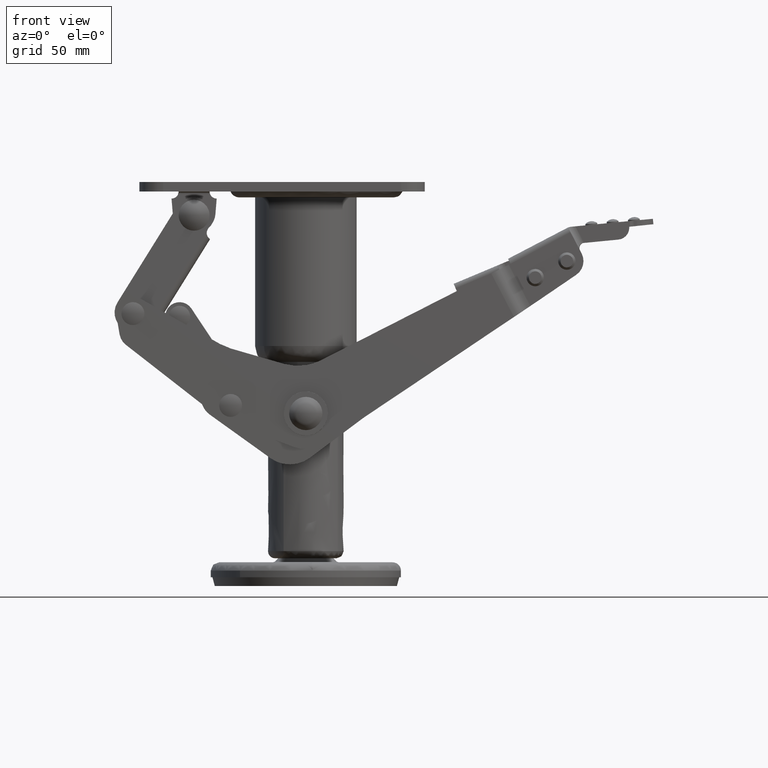
[diagram: clean part render]
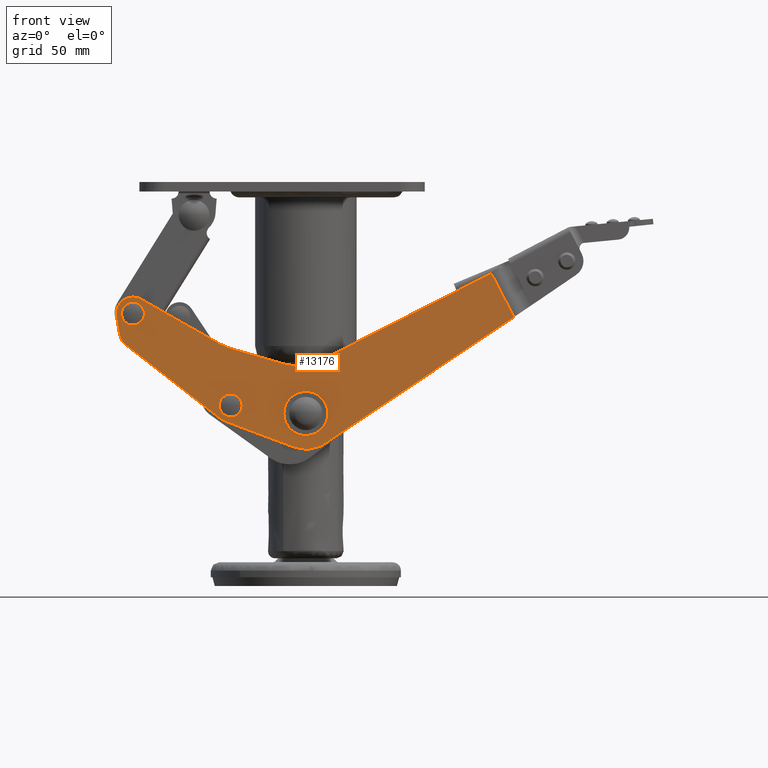
[diagram: same view with one face highlighted and labeled with its STEP entity id]
A machine part, front view. The second image highlights one B-rep face of the part: STEP entity #13176.
In plain terms, the highlighted face is a freeform B-spline surface patch.
Its self-contained STEP definition (entity closure, byte-faithful):
#2250=CARTESIAN_POINT('',(-6.483412954158206,-29.500000000000000,-90.802424948886113));
#2251=VERTEX_POINT('',#2250);
#2257=CARTESIAN_POINT('',(-9.250003999999565,-29.500000000000000,-97.399996828895169));
#2258=VERTEX_POINT('',#2257);
#2259=CARTESIAN_POINT('',(-6.483412954158206,-29.500000000000000,-90.802424948886113));
#2260=CARTESIAN_POINT('',(-7.084009327635009,-29.500000000000000,-91.392178302081760));
#2261=CARTESIAN_POINT('',(-7.862449045710289,-29.500000000000000,-92.400998311858714));
#2262=CARTESIAN_POINT('',(-8.701507211335645,-29.500000000000011,-94.125104871460721));
#2263=CARTESIAN_POINT('',(-9.146765233867892,-29.499999999999840,-95.678335760790929));
#2264=CARTESIAN_POINT('',(-9.250037180589136,-29.500000000000188,-96.864379298008856));
#2265=CARTESIAN_POINT('',(-9.250003999999565,-29.500000000000000,-97.399996828895169));
#2266=B_SPLINE_CURVE_WITH_KNOTS('',3,(#2259,#2260,#2261,#2262,#2263,#2264,#2265),.UNSPECIFIED.,.F.,.U.,(4,1,1,1,4),(0.000000077737329,2.525091107577648,3.787585212380264,5.738838842832642,7.345707402892765),.UNSPECIFIED.);
#2267=EDGE_CURVE('',#2251,#2258,#2266,.T.);
#2269=CARTESIAN_POINT('',(0.0,-29.500000000000000,-106.649998000000000));
#2270=VERTEX_POINT('',#2269);
#2271=CARTESIAN_POINT('',(-9.250003999999565,-29.500000000000000,-97.399996828895169));
#2272=CARTESIAN_POINT('',(-9.250176592802443,-29.499999999999950,-98.194591537676729));
#2273=CARTESIAN_POINT('',(-9.029458171630733,-29.500000000000160,-99.897299374795608));
#2274=CARTESIAN_POINT('',(-8.050058355410609,-29.499999999999648,-102.182469788487590));
#2275=CARTESIAN_POINT('',(-6.739537883500302,-29.500000000000622,-103.819347185430900));
#2276=CARTESIAN_POINT('',(-5.411543117900588,-29.499999999999591,-104.950627357453600));
#2277=CARTESIAN_POINT('',(-4.015281198146607,-29.500000000000231,-105.799349631798800));
#2278=CARTESIAN_POINT('',(-2.156690963553120,-29.499999999999950,-106.477187488147610));
#2279=CARTESIAN_POINT('',(-0.756782888801496,-29.499999999999979,-106.650201858275200));
#2280=CARTESIAN_POINT('',(0.0,-29.500000000000000,-106.649998000000000));
#2281=B_SPLINE_CURVE_WITH_KNOTS('',3,(#2271,#2272,#2273,#2274,#2275,#2276,#2277,#2278,#2279,#2280),.UNSPECIFIED.,.F.,.U.,(4,1,1,1,1,1,1,4),(0.000000286314116,2.383789355200362,5.108228910369611,7.378409512533928,8.627123523451473,10.329891020655770,12.259662679597909,14.529961880420130),.UNSPECIFIED.);
#2282=EDGE_CURVE('',#2258,#2270,#2281,.T.);
#2284=CARTESIAN_POINT('',(9.250003999999567,-29.500000000000000,-97.399991171104759));
#2285=VERTEX_POINT('',#2284);
#2286=CARTESIAN_POINT('',(0.0,-29.500000000000000,-106.649998000000000));
#2287=CARTESIAN_POINT('',(1.021716513345304,-29.499999999999549,-106.650598047579710));
#2288=CARTESIAN_POINT('',(2.686156708353371,-29.500000000001130,-106.371293896932400));
#2289=CARTESIAN_POINT('',(4.721086244898847,-29.499999999998760,-105.423812310168000));
#2290=CARTESIAN_POINT('',(6.223370190940968,-29.500000000001329,-104.323875135978600));
#2291=CARTESIAN_POINT('',(7.483807731188828,-29.499999999999190,-102.950367352836810));
#2292=CARTESIAN_POINT('',(8.393553704061610,-29.500000000000909,-101.411015148244600));
#2293=CARTESIAN_POINT('',(9.069932995733232,-29.499999999999421,-99.556623519701134));
#2294=CARTESIAN_POINT('',(9.250319391192928,-29.499999999999901,-98.232467168523826));
#2295=CARTESIAN_POINT('',(9.250003999999567,-29.500000000000000,-97.399991171104759));
#2296=B_SPLINE_CURVE_WITH_KNOTS('',3,(#2286,#2287,#2288,#2289,#2290,#2291,#2292,#2293,#2294,#2295),.UNSPECIFIED.,.F.,.U.,(4,1,1,1,1,1,1,4),(0.000000285362690,3.064913639979162,4.994676985341577,6.697418788704622,8.627125419707685,10.556921502827789,12.032641383837380,14.529965069264341),.UNSPECIFIED.);
#2297=EDGE_CURVE('',#2270,#2285,#2296,.T.);
#2299=CARTESIAN_POINT('',(6.597570051188091,-29.500000000000000,-90.916580045813930));
#2300=VERTEX_POINT('',#2299);
#2301=CARTESIAN_POINT('',(9.250003999999567,-29.500000000000000,-97.399991171104759));
#2302=CARTESIAN_POINT('',(9.250310649899996,-29.500000000000011,-96.576760492781617));
#2303=CARTESIAN_POINT('',(9.078934667093327,-29.500000000000000,-95.304756624968775));
#2304=CARTESIAN_POINT('',(8.278861328025155,-29.499999999999929,-93.040795277313904));
#2305=CARTESIAN_POINT('',(7.385230318191345,-29.500000000000139,-91.716649163911256));
#2306=CARTESIAN_POINT('',(6.597570051188091,-29.500000000000000,-90.916580045813930));
#2307=B_SPLINE_CURVE_WITH_KNOTS('',3,(#2301,#2302,#2303,#2304,#2305,#2306),.UNSPECIFIED.,.F.,.U.,(4,1,1,4),(0.000000069596074,2.469591980200598,3.816611194831177,7.184256111728416),.UNSPECIFIED.);
#2308=EDGE_CURVE('',#2285,#2300,#2307,.T.);
#2344=CARTESIAN_POINT('',(0.0,-29.500000000000000,-88.149990000000017));
#2345=VERTEX_POINT('',#2344);
#2346=CARTESIAN_POINT('',(6.597570051188091,-29.500000000000000,-90.916580045813930));
#2347=CARTESIAN_POINT('',(6.114959062159630,-29.499999999999989,-90.425316188549672));
#2348=CARTESIAN_POINT('',(5.009483011785924,-29.500000000000050,-89.527049258944999));
#2349=CARTESIAN_POINT('',(2.792530285682137,-29.499999999999972,-88.447917408745624));
#2350=CARTESIAN_POINT('',(1.033057213136205,-29.499999999999950,-88.149378398189739));
#2351=CARTESIAN_POINT('',(0.0,-29.500000000000000,-88.149990000000017));
#2352=B_SPLINE_CURVE_WITH_KNOTS('',3,(#2346,#2347,#2348,#2349,#2350,#2351),.UNSPECIFIED.,.F.,.U.,(4,1,1,4),(0.000000077727742,2.065984539131261,4.246732909934885,7.345705123175991),.UNSPECIFIED.);
#2353=EDGE_CURVE('',#2300,#2345,#2352,.T.);
#2355=CARTESIAN_POINT('',(0.0,-29.500000000000000,-88.149990000000017));
#2356=CARTESIAN_POINT('',(-0.523846198909124,-29.500000000000000,-88.149959055741931));
#2357=CARTESIAN_POINT('',(-1.683814027512213,-29.500000000000000,-88.248743166051796));
#2358=CARTESIAN_POINT('',(-3.458802894808180,-29.499999999999979,-88.745702708936548));
#2359=CARTESIAN_POINT('',(-5.123426378114268,-29.500000000000089,-89.623923373727209));
#2360=CARTESIAN_POINT('',(-6.083115855630926,-29.499999999999741,-90.409001655545268));
#2361=CARTESIAN_POINT('',(-6.483412954158206,-29.500000000000000,-90.802424948886113));
#2362=B_SPLINE_CURVE_WITH_KNOTS('',3,(#2355,#2356,#2357,#2358,#2359,#2360,#2361),.UNSPECIFIED.,.F.,.U.,(4,1,1,1,4),(0.000000069583101,1.571551978699512,3.479917496119345,5.500449286873798,7.184258379166317),.UNSPECIFIED.);
#2363=EDGE_CURVE('',#2345,#2251,#2362,.T.);
#7229=CARTESIAN_POINT('',(-36.441032550056853,-29.500000000000000,-94.012479903737102));
#7230=VERTEX_POINT('',#7229);
#7231=CARTESIAN_POINT('',(-31.619207169563001,-29.500000000000000,-89.190658447276576));
#7232=VERTEX_POINT('',#7231);
#7233=CARTESIAN_POINT('',(-36.441032550056853,-29.500000000000000,-94.012479903737102));
#7234=CARTESIAN_POINT('',(-36.441135360845877,-29.500000000000039,-93.578560420801921));
#7235=CARTESIAN_POINT('',(-36.312538280630832,-29.499999999999879,-92.631756494420827));
#7236=CARTESIAN_POINT('',(-35.796852452061188,-29.500000000000110,-91.505760433219791));
#7237=CARTESIAN_POINT('',(-35.103850042012319,-29.499999999999911,-90.640333149827754));
#7238=CARTESIAN_POINT('',(-34.413552372296152,-29.500000000000028,-90.044848910627394));
#7239=CARTESIAN_POINT('',(-33.275470244601593,-29.500000000000131,-89.399818014855057));
#7240=CARTESIAN_POINT('',(-32.290006003806852,-29.499999999999929,-89.189787965348927));
#7241=CARTESIAN_POINT('',(-31.619207169563001,-29.500000000000000,-89.190658447276576));
#7242=B_SPLINE_CURVE_WITH_KNOTS('',3,(#7233,#7234,#7235,#7236,#7237,#7238,#7239,#7240,#7241),.UNSPECIFIED.,.F.,.U.,(4,1,1,1,1,1,4),(0.000000266260483,1.301806724543641,2.840387229093401,3.668826536274799,4.615552427494217,5.562369731826577,7.574293448925754),.UNSPECIFIED.);
#7243=EDGE_CURVE('',#7230,#7232,#7242,.T.);
#7245=CARTESIAN_POINT('',(-31.619207169563001,-29.500000000000000,-98.834309208267456));
#7246=VERTEX_POINT('',#7245);
#7247=CARTESIAN_POINT('',(-31.619207169563001,-29.500000000000000,-98.834309208267456));
#7248=CARTESIAN_POINT('',(-32.092616757449342,-29.500000000000000,-98.834537336136506));
#7249=CARTESIAN_POINT('',(-32.881441655079712,-29.500000000000028,-98.717121273690637));
#7250=CARTESIAN_POINT('',(-33.943464764104966,-29.499999999999979,-98.277171073936898));
#7251=CARTESIAN_POINT('',(-34.958318890196971,-29.499999999999972,-97.581344275453517));
#7252=CARTESIAN_POINT('',(-35.694725615202067,-29.499999999999950,-96.683995039425966));
#7253=CARTESIAN_POINT('',(-36.286527983945369,-29.500000000000188,-95.432297763340486));
#7254=CARTESIAN_POINT('',(-36.441593952580021,-29.499999999999950,-94.604316890349580));
#7255=CARTESIAN_POINT('',(-36.441032550056853,-29.500000000000000,-94.012479903737102));
#7256=B_SPLINE_CURVE_WITH_KNOTS('',3,(#7247,#7248,#7249,#7250,#7251,#7252,#7253,#7254,#7255),.UNSPECIFIED.,.F.,.U.,(4,1,1,1,1,1,4),(0.000000260888920,1.420165241788820,2.366990184099729,3.432164203182618,5.088954356024459,5.799074019936736,7.574297872338033),.UNSPECIFIED.);
#7257=EDGE_CURVE('',#7246,#7230,#7256,.T.);
#7259=CARTESIAN_POINT('',(-26.797381789069160,-29.500000000000000,-94.012487751806901));
#7260=VERTEX_POINT('',#7259);
#7261=CARTESIAN_POINT('',(-26.797381789069160,-29.500000000000000,-94.012487751806901));
#7262=CARTESIAN_POINT('',(-26.797237859320429,-29.499999999999989,-94.446420177665743));
#7263=CARTESIAN_POINT('',(-26.904613600858340,-29.499999999999989,-95.235336387603809));
#7264=CARTESIAN_POINT('',(-27.302555922607532,-29.500000000000071,-96.230343248161290));
#7265=CARTESIAN_POINT('',(-27.820786914511380,-29.499999999999929,-97.026844208014509));
#7266=CARTESIAN_POINT('',(-28.558682522381861,-29.500000000000050,-97.802065725616245));
#7267=CARTESIAN_POINT('',(-29.805091129303790,-29.500000000000000,-98.591685580484054));
#7268=CARTESIAN_POINT('',(-30.948467617339620,-29.499999999999979,-98.835133002388957));
#7269=CARTESIAN_POINT('',(-31.619207169563001,-29.500000000000000,-98.834309208267456));
#7270=B_SPLINE_CURVE_WITH_KNOTS('',3,(#7261,#7262,#7263,#7264,#7265,#7266,#7267,#7268,#7269),.UNSPECIFIED.,.F.,.U.,(4,1,1,1,1,1,4),(0.000000266266273,1.301806724547610,2.366988806664493,3.195468266401990,4.142125560486935,5.562369731826314,7.574293448925768),.UNSPECIFIED.);
#7271=EDGE_CURVE('',#7260,#7246,#7270,.T.);
#7273=CARTESIAN_POINT('',(-31.619207169563001,-29.500000000000000,-89.190658447276576));
#7274=CARTESIAN_POINT('',(-31.066877606661951,-29.500000000000039,-89.190307870209224));
#7275=CARTESIAN_POINT('',(-30.199287500863360,-29.499999999999929,-89.341446700828271));
#7276=CARTESIAN_POINT('',(-28.945066643246609,-29.500000000000039,-89.934616349206891));
#7277=CARTESIAN_POINT('',(-27.936148828268450,-29.500000000000000,-90.783317712457503));
#7278=CARTESIAN_POINT('',(-27.040145233116281,-29.499999999999989,-92.198486395524128));
#7279=CARTESIAN_POINT('',(-26.796502493658721,-29.500000000000000,-93.341704665387468));
#7280=CARTESIAN_POINT('',(-26.797381789069160,-29.500000000000000,-94.012487751806901));
#7281=B_SPLINE_CURVE_WITH_KNOTS('',3,(#7273,#7274,#7275,#7276,#7277,#7278,#7279,#7280),.UNSPECIFIED.,.F.,.U.,(4,1,1,1,1,4),(0.000000260884838,1.656878506422524,2.603674901445065,4.142127976959782,5.562372980919182,7.574297872338010),.UNSPECIFIED.);
#7282=EDGE_CURVE('',#7232,#7260,#7281,.T.);
#7392=CARTESIAN_POINT('',(-77.561601113749958,-29.500000000000000,-55.389004261541892));
#7393=VERTEX_POINT('',#7392);
#7394=CARTESIAN_POINT('',(-72.739775733256096,-29.500000000000000,-50.567182805081337));
#7395=VERTEX_POINT('',#7394);
#7396=CARTESIAN_POINT('',(-77.561601113749958,-29.500000000000000,-55.389004261541892));
#7397=CARTESIAN_POINT('',(-77.561957686363982,-29.500000000000028,-54.836671789993183));
#7398=CARTESIAN_POINT('',(-77.410808483584219,-29.500000000000011,-53.969095027380867));
#7399=CARTESIAN_POINT('',(-76.817648415963049,-29.499999999999950,-52.714831031850807));
#7400=CARTESIAN_POINT('',(-76.020358335675922,-29.500000000000099,-51.767186780245609));
#7401=CARTESIAN_POINT('',(-74.929626359455156,-29.499999999999961,-51.038553722770892));
#7402=CARTESIAN_POINT('',(-73.844311106331773,-29.500000000000000,-50.650308410888961));
#7403=CARTESIAN_POINT('',(-73.094811353309908,-29.500000000000011,-50.567126292342017));
#7404=CARTESIAN_POINT('',(-72.739775733256096,-29.500000000000000,-50.567182805081337));
#7405=B_SPLINE_CURVE_WITH_KNOTS('',3,(#7396,#7397,#7398,#7399,#7400,#7401,#7402,#7403,#7404),.UNSPECIFIED.,.F.,.U.,(4,1,1,1,1,1,4),(0.000000266261751,1.656877542646017,2.603673386536701,4.142125560485976,5.325658047904710,6.509168968718938,7.574293448925794),.UNSPECIFIED.);
#7406=EDGE_CURVE('',#7393,#7395,#7405,.T.);
#7408=CARTESIAN_POINT('',(-72.739775733256096,-29.500000000000000,-60.210833566072267));
#7409=VERTEX_POINT('',#7408);
#7410=CARTESIAN_POINT('',(-72.739775733256096,-29.500000000000000,-60.210833566072267));
#7411=CARTESIAN_POINT('',(-73.292096576505017,-29.499999999999989,-60.211171748104519));
#7412=CARTESIAN_POINT('',(-74.356965048070506,-29.500000000000050,-60.025829276224947));
#7413=CARTESIAN_POINT('',(-75.792248518032537,-29.499999999999961,-59.236211469642832));
#7414=CARTESIAN_POINT('',(-76.733047907551708,-29.499999999999979,-58.197879673039857));
#7415=CARTESIAN_POINT('',(-77.392337969587956,-29.500000000000039,-56.887699996655194));
#7416=CARTESIAN_POINT('',(-77.562155811763830,-29.500000000000000,-55.980826165115147));
#7417=CARTESIAN_POINT('',(-77.561601113749958,-29.500000000000000,-55.389004261541892));
#7418=B_SPLINE_CURVE_WITH_KNOTS('',3,(#7410,#7411,#7412,#7413,#7414,#7415,#7416,#7417),.UNSPECIFIED.,.F.,.U.,(4,1,1,1,1,4),(0.000000260891094,1.656878506427848,3.195470128168934,4.852274228714590,5.799074019937119,7.574297872338051),.UNSPECIFIED.);
#7419=EDGE_CURVE('',#7409,#7393,#7418,.T.);
#7421=CARTESIAN_POINT('',(-67.917950352762247,-29.500000000000000,-55.389012109611699));
#7422=VERTEX_POINT('',#7421);
#7423=CARTESIAN_POINT('',(-67.917950352762247,-29.500000000000000,-55.389012109611699));
#7424=CARTESIAN_POINT('',(-67.917282370115629,-29.499999999999989,-56.020315633947682));
#7425=CARTESIAN_POINT('',(-68.106571367180990,-29.500000000000028,-56.966527926753493));
#7426=CARTESIAN_POINT('',(-68.686100155213694,-29.500000000000011,-58.050183992730602));
#7427=CARTESIAN_POINT('',(-69.304549777134241,-29.499999999999861,-58.823055777672529));
#7428=CARTESIAN_POINT('',(-70.072641425845873,-29.500000000000391,-59.453381945040782));
#7429=CARTESIAN_POINT('',(-71.241067646437344,-29.499999999999570,-60.041632803978850));
#7430=CARTESIAN_POINT('',(-72.147955754801714,-29.500000000000171,-60.211340261997172));
#7431=CARTESIAN_POINT('',(-72.739775733256096,-29.500000000000000,-60.210833566072267));
#7432=B_SPLINE_CURVE_WITH_KNOTS('',3,(#7423,#7424,#7425,#7426,#7427,#7428,#7429,#7430,#7431),.UNSPECIFIED.,.F.,.U.,(4,1,1,1,1,1,4),(0.000000266261448,1.893574630133839,2.840387229091947,3.668826536273225,4.852271401150890,5.799070632548317,7.574293448925898),.UNSPECIFIED.);
#7433=EDGE_CURVE('',#7422,#7409,#7432,.T.);
#7435=CARTESIAN_POINT('',(-72.739775733256096,-29.500000000000000,-50.567182805081337));
#7436=CARTESIAN_POINT('',(-72.187455612397628,-29.500000000000011,-50.566846351204411));
#7437=CARTESIAN_POINT('',(-71.122562257519789,-29.499999999999961,-50.752168176774077));
#7438=CARTESIAN_POINT('',(-69.897500856330552,-29.499999999999961,-51.426340824279890));
#7439=CARTESIAN_POINT('',(-69.065142089048194,-29.500000000000110,-52.219256462055171));
#7440=CARTESIAN_POINT('',(-68.517332382525467,-29.499999999999879,-52.996990882795217));
#7441=CARTESIAN_POINT('',(-68.051432880614897,-29.499999999999979,-54.047928382283970));
#7442=CARTESIAN_POINT('',(-67.917645045577004,-29.500000000000110,-54.876140706362428));
#7443=CARTESIAN_POINT('',(-67.917950352762247,-29.500000000000000,-55.389012109611699));
#7444=B_SPLINE_CURVE_WITH_KNOTS('',3,(#7435,#7436,#7437,#7438,#7439,#7440,#7441,#7442,#7443),.UNSPECIFIED.,.F.,.U.,(4,1,1,1,1,1,4),(0.000000260882063,1.656878506420562,3.195470128163661,4.142127976958284,5.088954356022867,6.035785841973789,7.574297872338176),.UNSPECIFIED.);
#7445=EDGE_CURVE('',#7395,#7422,#7444,.T.);
#12087=CARTESIAN_POINT('',(87.545050753605111,-29.500000000000000,-56.817024014597301));
#12088=VERTEX_POINT('',#12087);
#12098=CARTESIAN_POINT('',(77.991574225383900,-29.500000000000000,-38.523240494948098));
#12099=VERTEX_POINT('',#12098);
#12108=CARTESIAN_POINT('',(87.545050753605111,-29.500000000000000,-56.817024014597301));
#12109=CARTESIAN_POINT('',(77.991574225383900,-29.500000000000000,-38.523240494948098));
#12110=QUASI_UNIFORM_CURVE('',1,(#12108,#12109),.UNSPECIFIED.,.F.,.U.);
#12111=EDGE_CURVE('',#12088,#12099,#12110,.T.);
#12255=CARTESIAN_POINT('',(-35.916082887474403,-29.500000000000000,-99.538508540494206));
#12256=VERTEX_POINT('',#12255);
#12257=CARTESIAN_POINT('',(-34.091929999999998,-29.500000000000000,-100.561329000000000));
#12258=VERTEX_POINT('',#12257);
#12259=CARTESIAN_POINT('',(-35.916082887474403,-29.500000000000000,-99.538508540494206));
#12260=CARTESIAN_POINT('',(-35.363823069482649,-29.500000000000000,-99.968231902416505));
#12261=CARTESIAN_POINT('',(-34.746659379672323,-29.500000000000028,-100.314361615611200));
#12262=CARTESIAN_POINT('',(-34.091929999999998,-29.500000000000000,-100.561329000000000));
#12263=B_SPLINE_CURVE_WITH_KNOTS('',3,(#12259,#12260,#12261,#12262),.UNSPECIFIED.,.F.,.U.,(4,4),(9.783498E-009,2.099231881581437),.UNSPECIFIED.);
#12264=EDGE_CURVE('',#12256,#12258,#12263,.T.);
#12295=CARTESIAN_POINT('',(-75.758461491749003,-29.500000000000000,-68.477507018356604));
#12296=VERTEX_POINT('',#12295);
#12297=CARTESIAN_POINT('',(-75.758461491749003,-29.500000000000000,-68.477507018356604));
#12298=CARTESIAN_POINT('',(-35.916082887474403,-29.500000000000000,-99.538508540494206));
#12299=QUASI_UNIFORM_CURVE('',1,(#12297,#12298),.UNSPECIFIED.,.F.,.U.);
#12300=EDGE_CURVE('',#12296,#12256,#12299,.T.);
#12332=CARTESIAN_POINT('',(-78.355420019964285,-29.500000000000000,-64.129584882474305));
#12333=VERTEX_POINT('',#12332);
#12334=CARTESIAN_POINT('',(-78.355420019964285,-29.500000000000000,-64.129584882474305));
#12335=CARTESIAN_POINT('',(-78.274117603581630,-29.499999999999989,-64.608543822587706));
#12336=CARTESIAN_POINT('',(-77.996653479724060,-29.500000000000050,-65.601685577624778));
#12337=CARTESIAN_POINT('',(-77.175120469758753,-29.499999999999940,-67.134305108734296));
#12338=CARTESIAN_POINT('',(-76.312045585348557,-29.500000000000099,-68.046238688501845));
#12339=CARTESIAN_POINT('',(-75.758461491749003,-29.500000000000000,-68.477507018356604));
#12340=B_SPLINE_CURVE_WITH_KNOTS('',3,(#12334,#12335,#12336,#12337,#12338,#12339),.UNSPECIFIED.,.F.,.U.,(4,1,1,4),(0.000000030997393,1.457462923863167,3.076865071732427,5.182090099489219),.UNSPECIFIED.);
#12341=EDGE_CURVE('',#12333,#12296,#12340,.T.);
#12368=CARTESIAN_POINT('',(-79.641049957649400,-29.500000000000000,-56.561333249309712));
#12369=VERTEX_POINT('',#12368);
#12370=CARTESIAN_POINT('',(-79.641049957649400,-29.500000000000000,-56.561333249309712));
#12371=CARTESIAN_POINT('',(-78.355420019964285,-29.500000000000000,-64.129584882474305));
#12372=QUASI_UNIFORM_CURVE('',1,(#12370,#12371),.UNSPECIFIED.,.F.,.U.);
#12373=EDGE_CURVE('',#12369,#12333,#12372,.T.);
#12409=CARTESIAN_POINT('',(-69.257081732898300,-29.500000000000000,-49.316879614807512));
#12410=VERTEX_POINT('',#12409);
#12411=CARTESIAN_POINT('',(-69.257081732898300,-29.500000000000000,-49.316879614807512));
#12412=CARTESIAN_POINT('',(-69.685856417715783,-29.499999999999979,-49.070897197625627));
#12413=CARTESIAN_POINT('',(-70.709533303351961,-29.500000000000060,-48.620034715142367));
#12414=CARTESIAN_POINT('',(-72.223196978213323,-29.500000000000021,-48.350091256531350));
#12415=CARTESIAN_POINT('',(-73.875909360210244,-29.500000000000039,-48.423208671267702));
#12416=CARTESIAN_POINT('',(-75.560544040577938,-29.499999999999790,-48.879863154728547));
#12417=CARTESIAN_POINT('',(-77.054495527148589,-29.500000000000391,-49.790626780350351));
#12418=CARTESIAN_POINT('',(-78.282306683935857,-29.499999999999790,-51.019277859311593));
#12419=CARTESIAN_POINT('',(-79.082630568896604,-29.499999999999801,-52.283248983629129));
#12420=CARTESIAN_POINT('',(-79.544989012909042,-29.500000000000110,-53.612458080835822));
#12421=CARTESIAN_POINT('',(-79.778639864084482,-29.499999999999929,-54.997014530762840));
#12422=CARTESIAN_POINT('',(-79.744755429266363,-29.500000000000039,-55.952172389855598));
#12423=CARTESIAN_POINT('',(-79.641049957649400,-29.500000000000000,-56.561333249309712));
#12424=B_SPLINE_CURVE_WITH_KNOTS('',3,(#12411,#12412,#12413,#12414,#12415,#12416,#12417,#12418,#12419,#12420,#12421,#12422,#12423),.UNSPECIFIED.,.F.,.U.,(4,1,1,1,1,1,1,1,1,1,4),(0.000000583188646,1.483008435530474,3.336831998400857,4.572717058152390,6.426566880837481,8.527415984754782,9.763241099960744,11.617101718654650,12.976600342819170,13.965326359453780,15.819044798083610),.UNSPECIFIED.);
#12425=EDGE_CURVE('',#12410,#12369,#12424,.T.);
#12459=CARTESIAN_POINT('',(-36.121780000000001,-29.500000000000000,-68.148086999999990));
#12460=VERTEX_POINT('',#12459);
#12461=CARTESIAN_POINT('',(-36.121780000000001,-29.500000000000000,-68.148086999999990));
#12462=CARTESIAN_POINT('',(-69.257081732898300,-29.500000000000000,-49.316879614807512));
#12463=QUASI_UNIFORM_CURVE('',1,(#12461,#12462),.UNSPECIFIED.,.F.,.U.);
#12464=EDGE_CURVE('',#12460,#12410,#12463,.T.);
#12496=CARTESIAN_POINT('',(-31.590869999665749,-29.500000000000000,-70.060631000096890));
#12497=VERTEX_POINT('',#12496);
#12498=CARTESIAN_POINT('',(-36.121780000000001,-29.500000000000000,-68.148086999999990));
#12499=CARTESIAN_POINT('',(-34.693352550260578,-29.499999999999989,-68.960184628512664));
#12500=CARTESIAN_POINT('',(-33.169124032190510,-29.500000000000082,-69.603479804960728));
#12501=CARTESIAN_POINT('',(-31.590869999665749,-29.500000000000000,-70.060631000096890));
#12502=B_SPLINE_CURVE_WITH_KNOTS('',3,(#12498,#12499,#12500,#12501),.UNSPECIFIED.,.F.,.U.,(4,4),(3.549657E-009,4.929346446035098),.UNSPECIFIED.);
#12503=EDGE_CURVE('',#12460,#12497,#12502,.T.);
#12528=CARTESIAN_POINT('',(-9.168170000000000,-29.500000000000000,-76.558491000000004));
#12529=VERTEX_POINT('',#12528);
#12530=CARTESIAN_POINT('',(-9.168170000000000,-29.500000000000000,-76.558491000000004));
#12531=CARTESIAN_POINT('',(-31.590869999665749,-29.500000000000000,-70.060631000096890));
#12532=QUASI_UNIFORM_CURVE('',1,(#12530,#12531),.UNSPECIFIED.,.F.,.U.);
#12533=EDGE_CURVE('',#12529,#12497,#12532,.T.);
#12565=CARTESIAN_POINT('',(6.211179989816660,-29.500000000000000,-75.099251005189103));
#12566=VERTEX_POINT('',#12565);
#12567=CARTESIAN_POINT('',(-9.168170000000000,-29.500000000000000,-76.558491000000004));
#12568=CARTESIAN_POINT('',(-7.348090428346720,-29.500000000000099,-77.086638772073684));
#12569=CARTESIAN_POINT('',(-3.975362554933462,-29.499999999999819,-77.583788090999533));
#12570=CARTESIAN_POINT('',(1.303881886468630,-29.500000000000309,-77.083034144475448));
#12571=CARTESIAN_POINT('',(4.522901323735121,-29.499999999999730,-75.960212134050010));
#12572=CARTESIAN_POINT('',(6.211179989816660,-29.500000000000000,-75.099251005189103));
#12573=B_SPLINE_CURVE_WITH_KNOTS('',3,(#12567,#12568,#12569,#12570,#12571,#12572),.UNSPECIFIED.,.F.,.U.,(4,1,1,4),(0.000000040835566,5.685312748856438,10.134631033500041,15.819943741520580),.UNSPECIFIED.);
#12574=EDGE_CURVE('',#12529,#12566,#12573,.T.);
#12610=CARTESIAN_POINT('',(8.347470000000000,-29.500000000000000,-109.862774000000000));
#12611=VERTEX_POINT('',#12610);
#12612=CARTESIAN_POINT('',(8.347470000000000,-29.500000000000000,-109.862774000000000));
#12613=CARTESIAN_POINT('',(87.545050753605111,-29.500000000000000,-56.817024014597301));
#12614=QUASI_UNIFORM_CURVE('',1,(#12612,#12613),.UNSPECIFIED.,.F.,.U.);
#12615=EDGE_CURVE('',#12611,#12088,#12614,.T.);
#12658=CARTESIAN_POINT('',(-5.298955763659250,-29.500000000000000,-111.432976446602790));
#12659=VERTEX_POINT('',#12658);
#12660=CARTESIAN_POINT('',(-5.298955763659250,-29.500000000000000,-111.432976446602790));
#12661=CARTESIAN_POINT('',(-3.839149557957465,-29.500000000000011,-111.985042777553300));
#12662=CARTESIAN_POINT('',(-1.261367949995165,-29.500000000000021,-112.519541187193300));
#12663=CARTESIAN_POINT('',(2.543535300097116,-29.499999999999890,-112.309665542483400));
#12664=CARTESIAN_POINT('',(5.638035392261446,-29.500000000000430,-111.426264068338100));
#12665=CARTESIAN_POINT('',(7.544848852376449,-29.499999999999581,-110.400464529308810));
#12666=CARTESIAN_POINT('',(8.347470000000000,-29.500000000000000,-109.862774000000000));
#12667=B_SPLINE_CURVE_WITH_KNOTS('',3,(#12660,#12661,#12662,#12663,#12664,#12665,#12666),.UNSPECIFIED.,.F.,.U.,(4,1,1,1,4),(0.000000056120701,4.681838027266924,7.803023490234399,11.370183441063180,14.268455397681130),.UNSPECIFIED.);
#12668=EDGE_CURVE('',#12659,#12611,#12667,.T.);
#12697=CARTESIAN_POINT('',(-34.091929999999998,-29.500000000000000,-100.561329000000000));
#12698=CARTESIAN_POINT('',(-5.298955763659250,-29.500000000000000,-111.432976446602790));
#12699=QUASI_UNIFORM_CURVE('',1,(#12697,#12698),.UNSPECIFIED.,.F.,.U.);
#12700=EDGE_CURVE('',#12258,#12659,#12699,.T.);
#12941=CARTESIAN_POINT('',(77.991574225383900,-29.500000000000000,-38.523240494948098));
#12942=CARTESIAN_POINT('',(6.211179989816660,-29.500000000000000,-75.099251005189103));
#12943=QUASI_UNIFORM_CURVE('',1,(#12941,#12942),.UNSPECIFIED.,.F.,.U.);
#12944=EDGE_CURVE('',#12099,#12566,#12943,.T.);
#13135=CARTESIAN_POINT('',(-88.094628015466441,-29.500000000000000,-34.833145018727187));
#13136=CARTESIAN_POINT('',(95.900883260923280,-29.500000000000000,-34.833145018727187));
#13137=CARTESIAN_POINT('',(-88.094628015466441,-29.500000000000000,-116.089097041079100));
#13138=CARTESIAN_POINT('',(95.900883260923280,-29.500000000000000,-116.089097041079100));
#13139=B_SPLINE_SURFACE_WITH_KNOTS('',1,1,((#13135,#13137),(#13136,#13138)),.UNSPECIFIED.,.F.,.F.,.U.,(2,2),(2,2),(0.0,183.995511276389690),(0.0,81.255952022351877),.UNSPECIFIED.);
#13140=ORIENTED_EDGE('',*,*,#12615,.T.);
#13141=ORIENTED_EDGE('',*,*,#12111,.T.);
#13142=ORIENTED_EDGE('',*,*,#12944,.T.);
#13143=ORIENTED_EDGE('',*,*,#12574,.F.);
#13144=ORIENTED_EDGE('',*,*,#12533,.T.);
#13145=ORIENTED_EDGE('',*,*,#12503,.F.);
#13146=ORIENTED_EDGE('',*,*,#12464,.T.);
#13147=ORIENTED_EDGE('',*,*,#12425,.T.);
#13148=ORIENTED_EDGE('',*,*,#12373,.T.);
#13149=ORIENTED_EDGE('',*,*,#12341,.T.);
#13150=ORIENTED_EDGE('',*,*,#12300,.T.);
#13151=ORIENTED_EDGE('',*,*,#12264,.T.);
#13152=ORIENTED_EDGE('',*,*,#12700,.T.);
#13153=ORIENTED_EDGE('',*,*,#12668,.T.);
#13154=EDGE_LOOP('',(#13140,#13141,#13142,#13143,#13144,#13145,#13146,#13147,#13148,#13149,#13150,#13151,#13152,#13153));
#13155=FACE_OUTER_BOUND('',#13154,.T.);
#13156=ORIENTED_EDGE('',*,*,#2282,.F.);
#13157=ORIENTED_EDGE('',*,*,#2267,.F.);
#13158=ORIENTED_EDGE('',*,*,#2363,.F.);
#13159=ORIENTED_EDGE('',*,*,#2353,.F.);
#13160=ORIENTED_EDGE('',*,*,#2308,.F.);
#13161=ORIENTED_EDGE('',*,*,#2297,.F.);
#13162=EDGE_LOOP('',(#13156,#13157,#13158,#13159,#13160,#13161));
#13163=FACE_BOUND('',#13162,.T.);
#13164=ORIENTED_EDGE('',*,*,#7445,.T.);
#13165=ORIENTED_EDGE('',*,*,#7433,.T.);
#13166=ORIENTED_EDGE('',*,*,#7419,.T.);
#13167=ORIENTED_EDGE('',*,*,#7406,.T.);
#13168=EDGE_LOOP('',(#13164,#13165,#13166,#13167));
#13169=FACE_BOUND('',#13168,.T.);
#13170=ORIENTED_EDGE('',*,*,#7282,.T.);
#13171=ORIENTED_EDGE('',*,*,#7271,.T.);
#13172=ORIENTED_EDGE('',*,*,#7257,.T.);
#13173=ORIENTED_EDGE('',*,*,#7243,.T.);
#13174=EDGE_LOOP('',(#13170,#13171,#13172,#13173));
#13175=FACE_BOUND('',#13174,.T.);
#13176=ADVANCED_FACE('',(#13155,#13163,#13169,#13175),#13139,.F.);